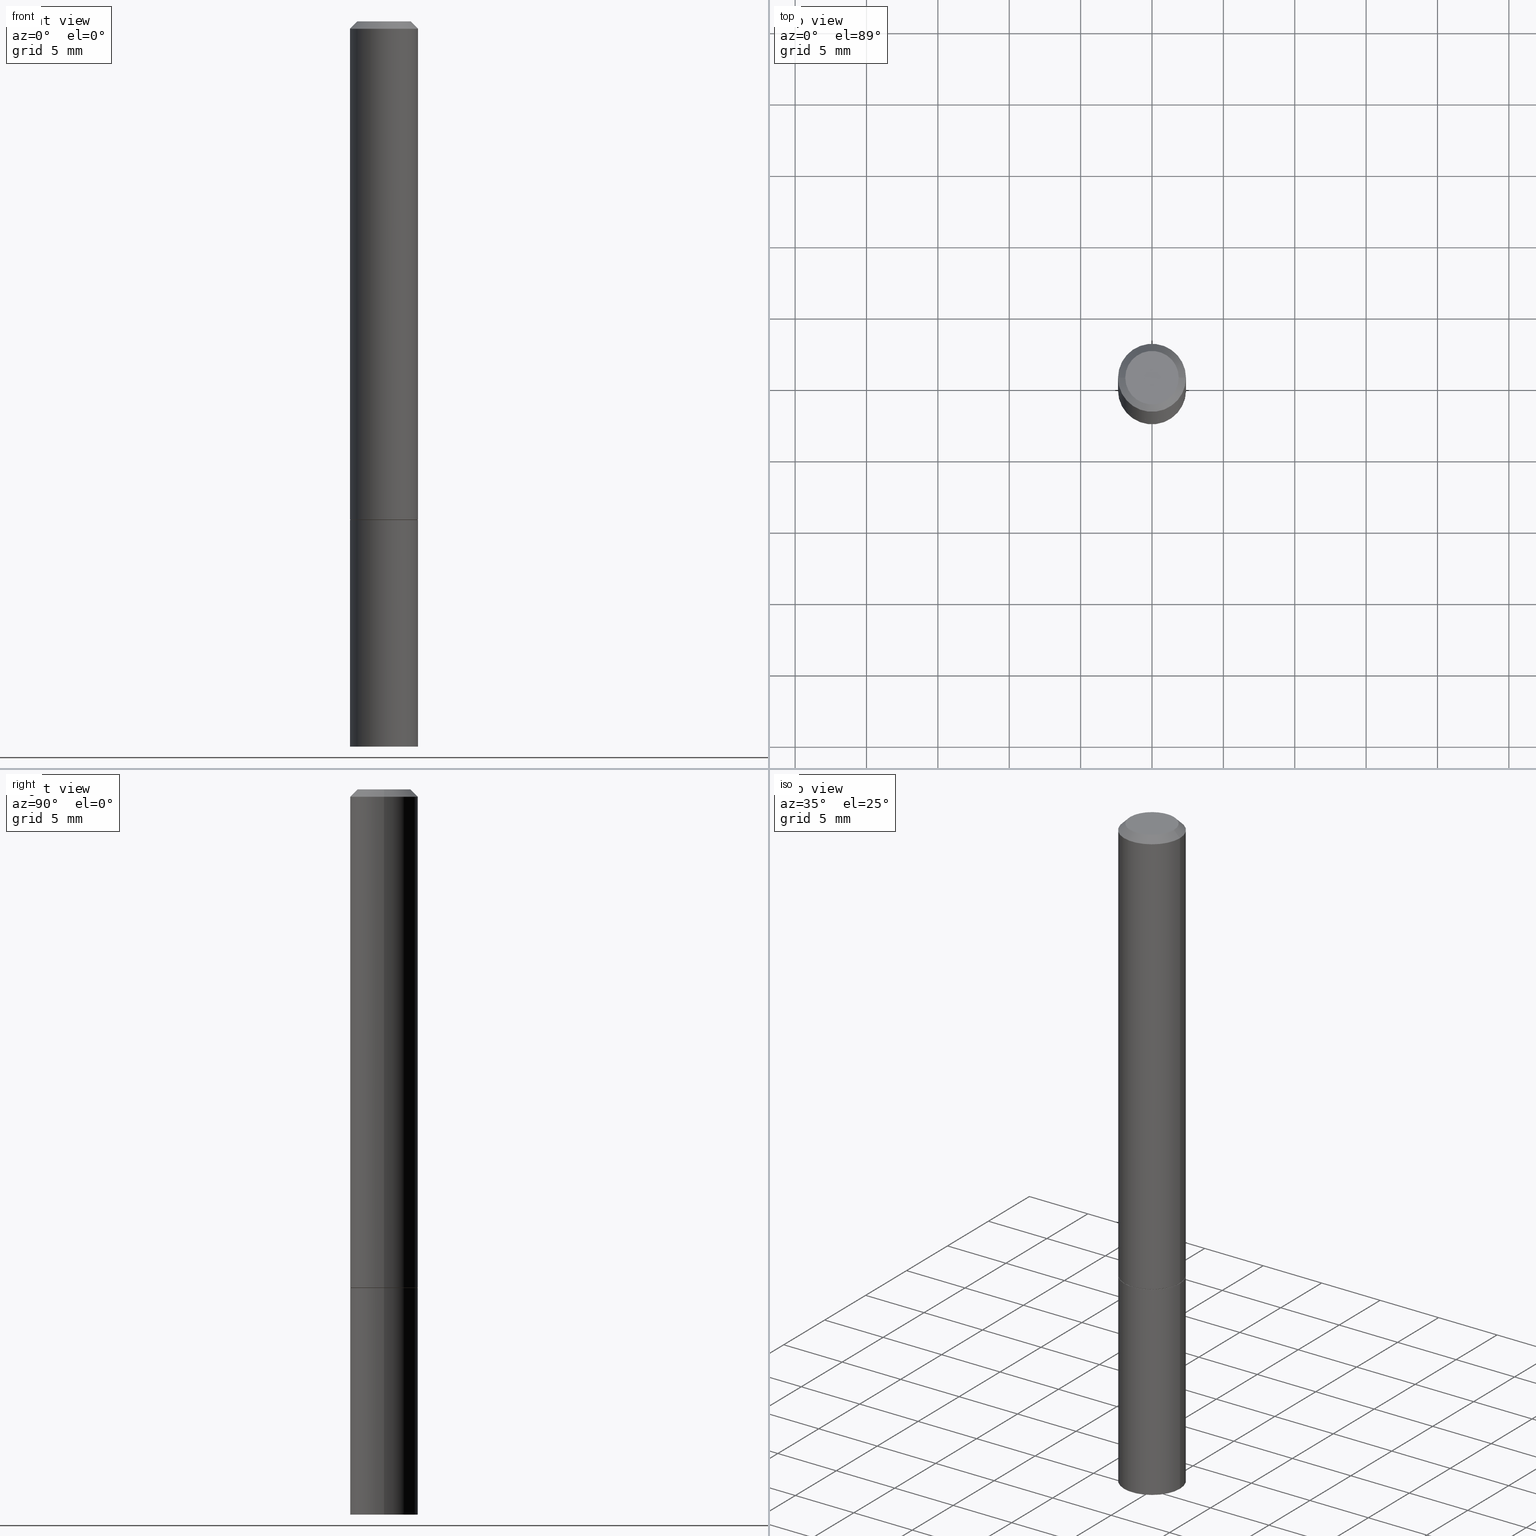
[diagram: canonical four-view strip — front | top / right | iso, engineering-drawing reading convention]
A machine part, canonical four-view strip (front | top / right | iso — engineering-drawing reading convention). The complete STEP part file that produces these views, byte-faithful:
ISO-10303-21;
HEADER;
FILE_DESCRIPTION (( 'STEP AP203' ),
    '1' );
FILE_NAME ('30442.STEP',
    '2024-02-27T12:40:58',
    ( '' ),
    ( '' ),
    'SwSTEP 2.0',
    'SolidWorks 2023',
    '' );
FILE_SCHEMA (( 'CONFIG_CONTROL_DESIGN' ));
ENDSEC;

DATA;
#1 = UNCERTAINTY_MEASURE_WITH_UNIT (LENGTH_MEASURE( 1.000000000000000082E-05 ), #91, 'distance_accuracy_value', 'NONE');
#2 = PRODUCT_DEFINITION_FORMATION_WITH_SPECIFIED_SOURCE ( 'ANY', '', #275, .NOT_KNOWN. ) ;
#3 = ADVANCED_FACE ( 'NONE', ( #36 ), #212, .T. ) ;
#4 = EDGE_LOOP ( 'NONE', ( #96, #232, #155, #316 ) ) ;
#5 = ORIENTED_EDGE ( 'NONE', *, *, #179, .F. ) ;
#6 = ORIENTED_EDGE ( 'NONE', *, *, #307, .T. ) ;
#7 =( NAMED_UNIT ( * ) PLANE_ANGLE_UNIT ( ) SI_UNIT ( $, .RADIAN. ) );
#8 = AXIS2_PLACEMENT_3D ( 'NONE', #222, #247, #191 ) ;
#9 = ORIENTED_EDGE ( 'NONE', *, *, #149, .F. ) ;
#10 = AXIS2_PLACEMENT_3D ( 'NONE', #366, #115, #229 ) ;
#11 = PERSON_AND_ORGANIZATION_ROLE ( 'design_supplier' ) ;
#12 = ORIENTED_EDGE ( 'NONE', *, *, #170, .F. ) ;
#13 = DIRECTION ( 'NONE',  ( 1.000000000000000000, 0.000000000000000000, 0.000000000000000000 ) ) ;
#14 = PLANE ( 'NONE',  #314 ) ;
#15 = DIRECTION ( 'NONE',  ( -2.445468806185136597E-29, 3.491481338843145583E-15, 1.000000000000000000 ) ) ;
#16 = EDGE_CURVE ( 'NONE', #261, #292, #258, .T. ) ;
#17 = CARTESIAN_POINT ( 'NONE',  ( 0.09274999999999999911, -5.448456629264727208E-15, -1.375000000000000000 ) ) ;
#18 = LINE ( 'NONE', #19, #332 ) ;
#19 = CARTESIAN_POINT ( 'NONE',  ( -0.09375000000000001388, 6.661338147750940229E-16, -4.611501647113973995E-30 ) ) ;
#20 = VECTOR ( 'NONE', #230, 39.37007874015748143 ) ;
#21 = APPROVAL_STATUS ( 'not_yet_approved' ) ;
#22 = FACE_OUTER_BOUND ( 'NONE', #187, .T. ) ;
#23 = CARTESIAN_POINT ( 'NONE',  ( 0.09375000000000001388, -7.637615428719378669E-15, -2.000000000000000000 ) ) ;
#24 = PERSON_AND_ORGANIZATION ( #111, #60 ) ;
#25 = DIRECTION ( 'NONE',  ( -2.445468806185136597E-29, 3.491481338843145583E-15, 1.000000000000000000 ) ) ;
#26 = ADVANCED_FACE ( 'NONE', ( #42 ), #175, .T. ) ;
#27 = CONICAL_SURFACE ( 'NONE', #228, 0.09274999999999999911, 0.7853981633974141952 ) ;
#28 = LOCAL_TIME ( 7, 40, 58.00000000000000000, #237 ) ;
#29 = DIRECTION ( 'NONE',  ( 1.000000000000000000, -6.982962677686265922E-15, 4.876176775795935793E-29 ) ) ;
#30 = LINE ( 'NONE', #195, #20 ) ;
#31 = MANIFOLD_SOLID_BREP ( 'Body-Move/Copy2[1]', #215 ) ;
#32 = CALENDAR_DATE ( 2024, 27, 2 ) ;
#33 = ORIENTED_EDGE ( 'NONE', *, *, #287, .F. ) ;
#34 = AXIS2_PLACEMENT_3D ( 'NONE', #277, #272, #194 ) ;
#35 = ORIENTED_EDGE ( 'NONE', *, *, #104, .F. ) ;
#36 = FACE_OUTER_BOUND ( 'NONE', #62, .T. ) ;
#37 = EDGE_CURVE ( 'NONE', #68, #130, #305, .T. ) ;
#38 = EDGE_LOOP ( 'NONE', ( #120, #178 ) ) ;
#39 = CLOSED_SHELL ( 'NONE', ( #156, #3, #330, #26, #350, #319, #63, #185 ) ) ;
#40 = SECURITY_CLASSIFICATION ( '', '', #329 ) ;
#41 = ORIENTED_EDGE ( 'NONE', *, *, #246, .T. ) ;
#42 = FACE_OUTER_BOUND ( 'NONE', #101, .T. ) ;
#43 = CALENDAR_DATE ( 2024, 27, 2 ) ;
#44 = EDGE_CURVE ( 'NONE', #206, #292, #18, .T. ) ;
#45 = CARTESIAN_POINT ( 'NONE',  ( -0.07374999999999982958, 5.499083108677921624E-16, 4.268512490096688071E-18 ) ) ;
#46 = APPROVAL ( #93, 'UNSPECIFIED' ) ;
#47 = DIRECTION ( 'NONE',  ( 1.000000000000000000, -6.982962677686261189E-15, 0.000000000000000000 ) ) ;
#48 = AXIS2_PLACEMENT_3D ( 'NONE', #75, #190, #239 ) ;
#49 = PERSON_AND_ORGANIZATION ( #111, #60 ) ;
#50 = DIRECTION ( 'NONE',  ( 0.000000000000000000, 0.000000000000000000, 1.000000000000000000 ) ) ;
#51 = DIRECTION ( 'NONE',  ( -2.445468806185136597E-29, 3.491481338843145583E-15, 1.000000000000000000 ) ) ;
#52 = EDGE_CURVE ( 'NONE', #153, #94, #181, .T. ) ;
#53 = CARTESIAN_POINT ( 'NONE',  ( -1.043851414335219820E-46, 1.490343170380447200E-32, 4.268512490100411279E-18 ) ) ;
#54 = PRODUCT_DEFINITION_SHAPE ( 'NONE', 'NONE',  #123 ) ;
#55 = AXIS2_PLACEMENT_3D ( 'NONE', #88, #84, #226 ) ;
#56 = FACE_OUTER_BOUND ( 'NONE', #234, .T. ) ;
#57 = CARTESIAN_POINT ( 'NONE',  ( 4.890937612370282792E-31, -6.982962677686303935E-17, -0.02000000000000003858 ) ) ;
#58 = CARTESIAN_POINT ( 'NONE',  ( 3.362519608504562260E-29, -4.800786840909324930E-15, -1.375000000000000000 ) ) ;
#59 = CIRCLE ( 'NONE', #118, 0.09374999999999981959 ) ;
#60 = ORGANIZATION ( 'UNSPECIFIED', 'UNSPECIFIED', '' ) ;
#61 = DIRECTION ( 'NONE',  ( -2.445468806185136877E-29, 3.491481338843145188E-15, 1.000000000000000000 ) ) ;
#62 = EDGE_LOOP ( 'NONE', ( #236, #320, #151, #204 ) ) ;
#63 = ADVANCED_FACE ( 'NONE', ( #354 ), #356, .F. ) ;
#64 = ORIENTED_EDGE ( 'NONE', *, *, #207, .F. ) ;
#65 = EDGE_LOOP ( 'NONE', ( #259, #159 ) ) ;
#66 = DATE_AND_TIME ( #95, #192 ) ;
#67 = AXIS2_PLACEMENT_3D ( 'NONE', #362, #223, #114 ) ;
#68 = VERTEX_POINT ( 'NONE', #331 ) ;
#69 = PERSON_AND_ORGANIZATION ( #111, #60 ) ;
#70 = ORIENTED_EDGE ( 'NONE', *, *, #166, .T. ) ;
#71 = ORIENTED_EDGE ( 'NONE', *, *, #304, .F. ) ;
#72 = AXIS2_PLACEMENT_3D ( 'NONE', #193, #189, #327 ) ;
#73 = DIRECTION ( 'NONE',  ( -2.445468806185136597E-29, 3.491481338843145583E-15, 1.000000000000000000 ) ) ;
#74 = EDGE_CURVE ( 'NONE', #68, #147, #337, .T. ) ;
#75 = CARTESIAN_POINT ( 'NONE',  ( 6.546527510331211293E-16, 0.09374999999999521216, -1.375000000000000222 ) ) ;
#76 = DIRECTION ( 'NONE',  ( -1.000000000000000000, 6.982962677686265922E-15, -4.876176775795935793E-29 ) ) ;
#77 = DIRECTION ( 'NONE',  ( 1.000000000000000000, -6.982962677686266711E-15, 4.875869617646596737E-29 ) ) ;
#78 = EDGE_CURVE ( 'NONE', #147, #68, #286, .T. ) ;
#79 = AXIS2_PLACEMENT_3D ( 'NONE', #184, #73, #107 ) ;
#80 = AXIS2_PLACEMENT_3D ( 'NONE', #53, #301, #77 ) ;
#81 = DIRECTION ( 'NONE',  ( 1.000000000000000000, -6.982962677686266711E-15, 4.875869617646596737E-29 ) ) ;
#82 = CC_DESIGN_PERSON_AND_ORGANIZATION_ASSIGNMENT ( #24, #279, ( #275 ) ) ;
#83 = CARTESIAN_POINT ( 'NONE',  ( 4.890937612370273194E-29, -6.982962677686291165E-15, -2.000000000000000000 ) ) ;
#84 = DIRECTION ( 'NONE',  ( -2.445468806185136597E-29, 3.491481338843145583E-15, 1.000000000000000000 ) ) ;
#85 = VECTOR ( 'NONE', #177, 39.37007874015748854 ) ;
#86 = CARTESIAN_POINT ( 'NONE',  ( -0.09374999999999981959, 5.848231242562232198E-16, -0.02000000000000003858 ) ) ;
#87 = COORDINATED_UNIVERSAL_TIME_OFFSET ( 5, 0, .BEHIND. ) ;
#88 = CARTESIAN_POINT ( 'NONE',  ( 0.000000000000000000, 0.000000000000000000, 0.000000000000000000 ) ) ;
#89 = DIRECTION ( 'NONE',  ( 1.000000000000000000, -6.982962677686261189E-15, 0.000000000000000000 ) ) ;
#90 = AXIS2_PLACEMENT_3D ( 'NONE', #359, #112, #141 ) ;
#91 =( CONVERSION_BASED_UNIT ( 'INCH', #338 ) LENGTH_UNIT ( ) NAMED_UNIT ( #318 ) );
#92 = DIRECTION ( 'NONE',  ( -2.445468806185136597E-29, 3.491481338843145583E-15, 1.000000000000000000 ) ) ;
#93 = APPROVAL_STATUS ( 'not_yet_approved' ) ;
#94 = VERTEX_POINT ( 'NONE', #165 ) ;
#95 = CALENDAR_DATE ( 2024, 27, 2 ) ;
#96 = ORIENTED_EDGE ( 'NONE', *, *, #240, .T. ) ;
#97 = ADVANCED_FACE ( 'NONE', ( #358 ), #300, .F. ) ;
#98 = VECTOR ( 'NONE', #288, 39.37007874015748854 ) ;
#99 = ORIENTED_EDGE ( 'NONE', *, *, #78, .F. ) ;
#100 = CC_DESIGN_PERSON_AND_ORGANIZATION_ASSIGNMENT ( #361, #311, ( #123 ) ) ;
#101 = EDGE_LOOP ( 'NONE', ( #9, #127, #266, #296 ) ) ;
#102 = PERSON_AND_ORGANIZATION ( #111, #60 ) ;
#103 = CARTESIAN_POINT ( 'NONE',  ( -0.09375000000000001388, -1.767428678398576122E-15, -1.373999999999999888 ) ) ;
#104 = EDGE_CURVE ( 'NONE', #292, #261, #264, .T. ) ;
#105 = CIRCLE ( 'NONE', #129, 0.09274999999999999911 ) ;
#106 = APPLICATION_PROTOCOL_DEFINITION ( 'international standard', 'config_control_design', 1994, #364 ) ;
#107 = DIRECTION ( 'NONE',  ( 1.000000000000000000, -6.982962677686261189E-15, 0.000000000000000000 ) ) ;
#108 = DIRECTION ( 'NONE',  ( 1.000000000000000000, -6.982962677686267499E-15, 0.000000000000000000 ) ) ;
#109 = PERSON_AND_ORGANIZATION_ROLE ( 'classification_officer' ) ;
#110 = DIRECTION ( 'NONE',  ( 0.7071067811865466846, -7.319954787623252890E-15, -0.7071067811865483499 ) ) ;
#111 = PERSON ( 'UNSPECIFIED', 'UNSPECIFIED', 'UNSPECIFIED', ('UNSPECIFIED'), ('UNSPECIFIED'), ('UNSPECIFIED') ) ;
#112 = DIRECTION ( 'NONE',  ( -2.445468806185136597E-29, 3.491481338843145583E-15, 1.000000000000000000 ) ) ;
#113 = COORDINATED_UNIVERSAL_TIME_OFFSET ( 5, 0, .BEHIND. ) ;
#114 = DIRECTION ( 'NONE',  ( -1.000000000000000000, 6.982962677686265922E-15, -4.876176775795935793E-29 ) ) ;
#115 = DIRECTION ( 'NONE',  ( -2.445468806185136597E-29, 3.491481338843145583E-15, 1.000000000000000000 ) ) ;
#116 = DATE_AND_TIME ( #248, #231 ) ;
#117 = DIRECTION ( 'NONE',  ( 1.000000000000000000, -6.982962677686267499E-15, 0.000000000000000000 ) ) ;
#118 = AXIS2_PLACEMENT_3D ( 'NONE', #214, #51, #108 ) ;
#119 = FACE_OUTER_BOUND ( 'NONE', #38, .T. ) ;
#120 = ORIENTED_EDGE ( 'NONE', *, *, #240, .F. ) ;
#121 = DIRECTION ( 'NONE',  ( 2.445468806185136597E-29, -3.491481338843145583E-15, -1.000000000000000000 ) ) ;
#122 = DESIGN_CONTEXT ( 'detailed design', #298, 'design' ) ;
#123 = PRODUCT_DEFINITION ( 'UNKNOWN', '', #2, #122 ) ;
#124 = AXIS2_PLACEMENT_3D ( 'NONE', #58, #335, #143 ) ;
#125 = COORDINATED_UNIVERSAL_TIME_OFFSET ( 5, 0, .BEHIND. ) ;
#126 = VERTEX_POINT ( 'NONE', #17 ) ;
#127 = ORIENTED_EDGE ( 'NONE', *, *, #52, .F. ) ;
#128 = ORIENTED_EDGE ( 'NONE', *, *, #78, .T. ) ;
#129 = AXIS2_PLACEMENT_3D ( 'NONE', #168, #274, #325 ) ;
#130 = VERTEX_POINT ( 'NONE', #245 ) ;
#131 = PERSON_AND_ORGANIZATION ( #111, #60 ) ;
#132 = EDGE_LOOP ( 'NONE', ( #64, #12 ) ) ;
#133 = DATE_AND_TIME ( #43, #297 ) ;
#134 = CARTESIAN_POINT ( 'NONE',  ( 5.149934974793609077E-16, 0.07374999999999982958, -2.553624924946311773E-16 ) ) ;
#135 = APPROVAL_PERSON_ORGANIZATION ( #69, #46, #315 ) ;
#136 = LINE ( 'NONE', #303, #278 ) ;
#137 = DATE_AND_TIME ( #324, #28 ) ;
#138 = DIRECTION ( 'NONE',  ( -2.445468806185136597E-29, 3.491481338843145583E-15, 1.000000000000000000 ) ) ;
#139 = CARTESIAN_POINT ( 'NONE',  ( -0.09374999999999981959, 5.848231242562232198E-16, -0.02000000000000003858 ) ) ;
#140 = APPLICATION_PROTOCOL_DEFINITION ( 'international standard', 'config_control_design', 1994, #298 ) ;
#141 = DIRECTION ( 'NONE',  ( 1.000000000000000000, -6.982962677686261189E-15, 0.000000000000000000 ) ) ;
#142 = AXIS2_PLACEMENT_3D ( 'NONE', #283, #25, #252 ) ;
#143 = DIRECTION ( 'NONE',  ( 1.000000000000000000, -6.982962677686273021E-15, 0.000000000000000000 ) ) ;
#144 = EDGE_CURVE ( 'NONE', #94, #153, #198, .T. ) ;
#145 = CARTESIAN_POINT ( 'NONE',  ( -0.09375000000000001388, -5.225740944522714123E-15, -1.375000000000000000 ) ) ;
#146 = CARTESIAN_POINT ( 'NONE',  ( -0.09375000000000001388, -5.225740944522714123E-15, -2.000000000000000000 ) ) ;
#147 = VERTEX_POINT ( 'NONE', #103 ) ;
#148 = AXIS2_PLACEMENT_3D ( 'NONE', #83, #250, #340 ) ;
#149 = EDGE_CURVE ( 'NONE', #94, #130, #136, .T. ) ;
#150 = CARTESIAN_POINT ( 'NONE',  ( 0.09274999999999999911, -5.448456629264727208E-15, -1.375000000000000000 ) ) ;
#151 = ORIENTED_EDGE ( 'NONE', *, *, #166, .F. ) ;
#152 = LOCAL_TIME ( 7, 40, 58.00000000000000000, #113 ) ;
#153 = VERTEX_POINT ( 'NONE', #45 ) ;
#154 = ORIENTED_EDGE ( 'NONE', *, *, #104, .T. ) ;
#155 = ORIENTED_EDGE ( 'NONE', *, *, #16, .F. ) ;
#156 = ADVANCED_FACE ( 'NONE', ( #162 ), #27, .T. ) ;
#157 = CIRCLE ( 'NONE', #326, 0.09374999999999981959 ) ;
#158 = PERSON_AND_ORGANIZATION ( #111, #60 ) ;
#159 = ORIENTED_EDGE ( 'NONE', *, *, #144, .T. ) ;
#160 = DIRECTION ( 'NONE',  ( -0.7071067811865466846, 2.468850131082247989E-15, -0.7071067811865483499 ) ) ;
#161 = APPROVAL_ROLE ( '' ) ;
#162 = FACE_OUTER_BOUND ( 'NONE', #213, .T. ) ;
#163 = SHAPE_DEFINITION_REPRESENTATION ( #54, #255 ) ;
#164 = MECHANICAL_CONTEXT ( 'NONE', #364, 'mechanical' ) ;
#165 = CARTESIAN_POINT ( 'NONE',  ( 0.07374999999999982958, -6.094815207017961198E-16, 4.268512490104342487E-18 ) ) ;
#166 = EDGE_CURVE ( 'NONE', #130, #317, #59, .T. ) ;
#167 = PERSON_AND_ORGANIZATION_ROLE ( 'creator' ) ;
#168 = CARTESIAN_POINT ( 'NONE',  ( 3.362519608504562260E-29, -4.800786840909324930E-15, -1.375000000000000000 ) ) ;
#169 = CARTESIAN_POINT ( 'NONE',  ( 3.362519608504562260E-29, -4.800786840909324930E-15, -1.375000000000000000 ) ) ;
#170 = EDGE_CURVE ( 'NONE', #294, #126, #105, .T. ) ;
#171 = DIRECTION ( 'NONE',  ( -2.445468806185136597E-29, 3.491481338843145583E-15, 1.000000000000000000 ) ) ;
#172 = CARTESIAN_POINT ( 'NONE',  ( 4.890937612370282792E-31, -6.982962677686303935E-17, -0.02000000000000003858 ) ) ;
#173 = CARTESIAN_POINT ( 'NONE',  ( 4.890937612370273194E-29, -6.982962677686291165E-15, -2.000000000000000000 ) ) ;
#174 = CARTESIAN_POINT ( 'NONE',  ( 0.09375000000000001388, -5.455439591942412434E-15, -1.375000000000000000 ) ) ;
#175 = CONICAL_SURFACE ( 'NONE', #8, 0.09374999999999981959, 0.7853981633974471688 ) ;
#176 = AXIS2_PLACEMENT_3D ( 'NONE', #336, #171, #29 ) ;
#177 = DIRECTION ( 'NONE',  ( 0.7071067811865232589, -2.468850131082003836E-15, 0.7071067811865715536 ) ) ;
#178 = ORIENTED_EDGE ( 'NONE', *, *, #211, .F. ) ;
#179 = EDGE_CURVE ( 'NONE', #153, #317, #218, .T. ) ;
#180 = ORIENTED_EDGE ( 'NONE', *, *, #37, .T. ) ;
#181 = CIRCLE ( 'NONE', #227, 0.07374999999999982958 ) ;
#182 = AXIS2_PLACEMENT_3D ( 'NONE', #219, #138, #47 ) ;
#183 = EDGE_LOOP ( 'NONE', ( #343, #347, #70, #5 ) ) ;
#184 = CARTESIAN_POINT ( 'NONE',  ( 3.362519608504562260E-29, -4.800786840909324930E-15, -1.375000000000000000 ) ) ;
#185 = ADVANCED_FACE ( 'NONE', ( #268 ), #14, .F. ) ;
#186 = APPROVAL_STATUS ( 'not_yet_approved' ) ;
#187 = EDGE_LOOP ( 'NONE', ( #71, #128, #180, #33 ) ) ;
#188 = APPROVAL_PERSON_ORGANIZATION ( #131, #276, #161 ) ;
#189 = DIRECTION ( 'NONE',  ( -2.438088387897960049E-29, 3.491481338843145188E-15, 1.000000000000000000 ) ) ;
#190 = DIRECTION ( 'NONE',  ( 2.438088387897960049E-29, -3.491481338843145188E-15, -1.000000000000000000 ) ) ;
#191 = DIRECTION ( 'NONE',  ( -1.000000000000000000, 6.982962677686267499E-15, 0.000000000000000000 ) ) ;
#192 = LOCAL_TIME ( 7, 40, 58.00000000000000000, #125 ) ;
#193 = CARTESIAN_POINT ( 'NONE',  ( 3.362519608504562260E-29, -4.800786840909324930E-15, -1.375000000000000000 ) ) ;
#194 = DIRECTION ( 'NONE',  ( 1.000000000000000000, -6.982962677686261189E-15, 0.000000000000000000 ) ) ;
#195 = CARTESIAN_POINT ( 'NONE',  ( 0.09375000000000001388, -6.546527510330875041E-16, 4.571415727308690506E-30 ) ) ;
#196 = PERSON_AND_ORGANIZATION ( #111, #60 ) ;
#197 = FACE_OUTER_BOUND ( 'NONE', #4, .T. ) ;
#198 = CIRCLE ( 'NONE', #80, 0.07374999999999982958 ) ;
#199 = CC_DESIGN_SECURITY_CLASSIFICATION ( #40, ( #2 ) ) ;
#200 = LINE ( 'NONE', #309, #241 ) ;
#201 = FACE_OUTER_BOUND ( 'NONE', #183, .T. ) ;
#202 = EDGE_LOOP ( 'NONE', ( #262, #154 ) ) ;
#203 = CYLINDRICAL_SURFACE ( 'NONE', #176, 0.09375000000000001388 ) ;
#204 = ORIENTED_EDGE ( 'NONE', *, *, #37, .F. ) ;
#205 = APPROVAL_PERSON_ORGANIZATION ( #196, #321, #251 ) ;
#206 = VERTEX_POINT ( 'NONE', #146 ) ;
#207 = EDGE_CURVE ( 'NONE', #126, #294, #260, .T. ) ;
#208 = ORIENTED_EDGE ( 'NONE', *, *, #170, .T. ) ;
#209 = ORIENTED_EDGE ( 'NONE', *, *, #246, .F. ) ;
#210 = DATE_TIME_ROLE ( 'creation_date' ) ;
#211 = EDGE_CURVE ( 'NONE', #206, #339, #360, .T. ) ;
#212 = CYLINDRICAL_SURFACE ( 'NONE', #285, 0.09374999999999991673 ) ;
#213 = EDGE_LOOP ( 'NONE', ( #235, #41, #263, #323 ) ) ;
#214 = CARTESIAN_POINT ( 'NONE',  ( 4.890937612370282792E-31, -6.982962677686303935E-17, -0.02000000000000003858 ) ) ;
#215 = CLOSED_SHELL ( 'NONE', ( #299, #365, #97, #267 ) ) ;
#216 = AXIS2_PLACEMENT_3D ( 'NONE', #172, #121, #282 ) ;
#217 = DIRECTION ( 'NONE',  ( -2.445468806185136877E-29, 3.491481338843145188E-15, 1.000000000000000000 ) ) ;
#218 = LINE ( 'NONE', #139, #333 ) ;
#219 = CARTESIAN_POINT ( 'NONE',  ( 3.360074139698377778E-29, -4.797295359570481134E-15, -1.373999999999999888 ) ) ;
#220 = CC_DESIGN_APPROVAL ( #46, ( #2 ) ) ;
#221 = CARTESIAN_POINT ( 'NONE',  ( 0.000000000000000000, 0.000000000000000000, 0.000000000000000000 ) ) ;
#222 = CARTESIAN_POINT ( 'NONE',  ( 4.890937612370282792E-31, -6.982962677686303935E-17, -0.02000000000000003858 ) ) ;
#223 = DIRECTION ( 'NONE',  ( 2.438088387897960049E-29, -3.491481338843145188E-15, -1.000000000000000000 ) ) ;
#224 = CARTESIAN_POINT ( 'NONE',  ( -0.09274999999999999911, -4.141758453491832014E-15, -1.375000000000000000 ) ) ;
#225 = APPROVAL_DATE_TIME ( #116, #321 ) ;
#226 = DIRECTION ( 'NONE',  ( 1.000000000000000000, -6.982962677686265922E-15, 4.876176775795935793E-29 ) ) ;
#227 = AXIS2_PLACEMENT_3D ( 'NONE', #243, #15, #81 ) ;
#228 = AXIS2_PLACEMENT_3D ( 'NONE', #169, #302, #269 ) ;
#229 = DIRECTION ( 'NONE',  ( 1.000000000000000000, -6.982962677686273021E-15, 0.000000000000000000 ) ) ;
#230 = DIRECTION ( 'NONE',  ( -2.445468806185136877E-29, 3.491481338843145188E-15, 1.000000000000000000 ) ) ;
#231 = LOCAL_TIME ( 7, 40, 58.00000000000000000, #87 ) ;
#232 = ORIENTED_EDGE ( 'NONE', *, *, #44, .T. ) ;
#233 = CC_DESIGN_PERSON_AND_ORGANIZATION_ASSIGNMENT ( #102, #11, ( #2 ) ) ;
#234 = EDGE_LOOP ( 'NONE', ( #209, #208, #6, #99 ) ) ;
#235 = ORIENTED_EDGE ( 'NONE', *, *, #207, .T. ) ;
#236 = ORIENTED_EDGE ( 'NONE', *, *, #74, .T. ) ;
#237 = COORDINATED_UNIVERSAL_TIME_OFFSET ( 5, 0, .BEHIND. ) ;
#238 = CARTESIAN_POINT ( 'NONE',  ( 0.000000000000000000, 0.000000000000000000, 0.000000000000000000 ) ) ;
#239 = DIRECTION ( 'NONE',  ( -1.000000000000000000, 6.982962677686265922E-15, -4.876176775795935793E-29 ) ) ;
#240 = EDGE_CURVE ( 'NONE', #339, #206, #254, .T. ) ;
#241 = VECTOR ( 'NONE', #61, 39.37007874015748143 ) ;
#242 =( NAMED_UNIT ( * ) SI_UNIT ( $, .STERADIAN. ) SOLID_ANGLE_UNIT ( ) );
#243 = CARTESIAN_POINT ( 'NONE',  ( -1.043851414335219820E-46, 1.490343170380447200E-32, 4.268512490100411279E-18 ) ) ;
#244 = CC_DESIGN_PERSON_AND_ORGANIZATION_ASSIGNMENT ( #49, #109, ( #40 ) ) ;
#245 = CARTESIAN_POINT ( 'NONE',  ( 0.09374999999999981959, -7.130013140679429031E-16, -0.02000000000000003858 ) ) ;
#246 = EDGE_CURVE ( 'NONE', #294, #147, #257, .T. ) ;
#247 = DIRECTION ( 'NONE',  ( 2.445468806185136597E-29, -3.491481338843145583E-15, -1.000000000000000000 ) ) ;
#248 = CALENDAR_DATE ( 2024, 27, 2 ) ;
#249 = CYLINDRICAL_SURFACE ( 'NONE', #142, 0.09374999999999991673 ) ;
#250 = DIRECTION ( 'NONE',  ( -2.445468806185136597E-29, 3.491481338843145583E-15, 1.000000000000000000 ) ) ;
#251 = APPROVAL_ROLE ( '' ) ;
#252 = DIRECTION ( 'NONE',  ( 1.000000000000000000, -6.982962677686266711E-15, 4.876176775795935793E-29 ) ) ;
#253 = LINE ( 'NONE', #150, #85 ) ;
#254 = CIRCLE ( 'NONE', #148, 0.09375000000000001388 ) ;
#255 = ADVANCED_BREP_SHAPE_REPRESENTATION ( '30442', ( #31, #281, #355 ), #270 ) ;
#256 = CC_DESIGN_PERSON_AND_ORGANIZATION_ASSIGNMENT ( #158, #167, ( #2 ) ) ;
#257 = LINE ( 'NONE', #224, #98 ) ;
#258 = CIRCLE ( 'NONE', #79, 0.09375000000000001388 ) ;
#259 = ORIENTED_EDGE ( 'NONE', *, *, #52, .T. ) ;
#260 = CIRCLE ( 'NONE', #124, 0.09274999999999999911 ) ;
#261 = VERTEX_POINT ( 'NONE', #174 ) ;
#262 = ORIENTED_EDGE ( 'NONE', *, *, #16, .T. ) ;
#263 = ORIENTED_EDGE ( 'NONE', *, *, #74, .F. ) ;
#264 = CIRCLE ( 'NONE', #34, 0.09375000000000001388 ) ;
#265 = CC_DESIGN_APPROVAL ( #276, ( #40 ) ) ;
#266 = ORIENTED_EDGE ( 'NONE', *, *, #179, .T. ) ;
#267 = ADVANCED_FACE ( 'NONE', ( #284 ), #203, .T. ) ;
#268 = FACE_OUTER_BOUND ( 'NONE', #65, .T. ) ;
#269 = DIRECTION ( 'NONE',  ( 1.000000000000000000, -6.982962677686273021E-15, 0.000000000000000000 ) ) ;
#270 =( GEOMETRIC_REPRESENTATION_CONTEXT ( 3 ) GLOBAL_UNCERTAINTY_ASSIGNED_CONTEXT ( ( #1 ) ) GLOBAL_UNIT_ASSIGNED_CONTEXT ( ( #91, #7, #242 ) ) REPRESENTATION_CONTEXT ( 'NONE', 'WORKASPACE' ) );
#271 = APPROVAL_DATE_TIME ( #137, #276 ) ;
#272 = DIRECTION ( 'NONE',  ( -2.445468806185136597E-29, 3.491481338843145583E-15, 1.000000000000000000 ) ) ;
#273 = COORDINATED_UNIVERSAL_TIME_OFFSET ( 5, 0, .BEHIND. ) ;
#274 = DIRECTION ( 'NONE',  ( -2.445468806185136597E-29, 3.491481338843145583E-15, 1.000000000000000000 ) ) ;
#275 = PRODUCT ( '30442', '30442', '', ( #164 ) ) ;
#276 = APPROVAL ( #186, 'UNSPECIFIED' ) ;
#277 = CARTESIAN_POINT ( 'NONE',  ( 3.362519608504562260E-29, -4.800786840909324930E-15, -1.375000000000000000 ) ) ;
#278 = VECTOR ( 'NONE', #110, 39.37007874015748143 ) ;
#279 = PERSON_AND_ORGANIZATION_ROLE ( 'design_owner' ) ;
#280 =( LENGTH_UNIT ( ) NAMED_UNIT ( * ) SI_UNIT ( $, .METRE. ) );
#281 = MANIFOLD_SOLID_BREP ( 'Body-Move/Copy2[2]', #39 ) ;
#282 = DIRECTION ( 'NONE',  ( -1.000000000000000000, 6.982962677686267499E-15, 0.000000000000000000 ) ) ;
#283 = CARTESIAN_POINT ( 'NONE',  ( 0.000000000000000000, 0.000000000000000000, 0.000000000000000000 ) ) ;
#284 = FACE_OUTER_BOUND ( 'NONE', #295, .T. ) ;
#285 = AXIS2_PLACEMENT_3D ( 'NONE', #238, #92, #322 ) ;
#286 = CIRCLE ( 'NONE', #182, 0.09375000000000001388 ) ;
#287 = EDGE_CURVE ( 'NONE', #317, #130, #157, .T. ) ;
#288 = DIRECTION ( 'NONE',  ( -0.7071067811865232589, 7.493145998870265808E-15, 0.7071067811865715536 ) ) ;
#289 = PRODUCT_RELATED_PRODUCT_CATEGORY ( 'detail', '', ( #275 ) ) ;
#290 = ORIENTED_EDGE ( 'NONE', *, *, #344, .T. ) ;
#291 = VECTOR ( 'NONE', #217, 39.37007874015748143 ) ;
#292 = VERTEX_POINT ( 'NONE', #145 ) ;
#293 = CONICAL_SURFACE ( 'NONE', #10, 0.09274999999999999911, 0.7853981633974141952 ) ;
#294 = VERTEX_POINT ( 'NONE', #313 ) ;
#295 = EDGE_LOOP ( 'NONE', ( #345, #351, #290, #35 ) ) ;
#296 = ORIENTED_EDGE ( 'NONE', *, *, #287, .T. ) ;
#297 = LOCAL_TIME ( 7, 40, 58.00000000000000000, #273 ) ;
#298 = APPLICATION_CONTEXT ( 'configuration controlled 3d designs of mechanical parts and assemblies' ) ;
#299 = ADVANCED_FACE ( 'NONE', ( #197 ), #310, .T. ) ;
#300 = PLANE ( 'NONE',  #48 ) ;
#301 = DIRECTION ( 'NONE',  ( -2.445468806185136597E-29, 3.491481338843145583E-15, 1.000000000000000000 ) ) ;
#302 = DIRECTION ( 'NONE',  ( -2.445468806185136597E-29, 3.491481338843145583E-15, 1.000000000000000000 ) ) ;
#303 = CARTESIAN_POINT ( 'NONE',  ( 0.09374999999999981959, -7.130013140679429031E-16, -0.02000000000000003858 ) ) ;
#304 = EDGE_CURVE ( 'NONE', #147, #317, #200, .T. ) ;
#305 = LINE ( 'NONE', #334, #291 ) ;
#306 = PLANE ( 'NONE',  #67 ) ;
#307 = EDGE_CURVE ( 'NONE', #126, #68, #253, .T. ) ;
#308 = AXIS2_PLACEMENT_3D ( 'NONE', #173, #312, #89 ) ;
#309 = CARTESIAN_POINT ( 'NONE',  ( -0.09374999999999991673, 6.661338147750933326E-16, -4.611501647113969791E-30 ) ) ;
#310 = CYLINDRICAL_SURFACE ( 'NONE', #55, 0.09375000000000001388 ) ;
#311 = PERSON_AND_ORGANIZATION_ROLE ( 'creator' ) ;
#312 = DIRECTION ( 'NONE',  ( -2.445468806185136597E-29, 3.491481338843145583E-15, 1.000000000000000000 ) ) ;
#313 = CARTESIAN_POINT ( 'NONE',  ( -0.09274999999999999911, -4.136459999143610400E-15, -1.375000000000000000 ) ) ;
#314 = AXIS2_PLACEMENT_3D ( 'NONE', #134, #328, #76 ) ;
#315 = APPROVAL_ROLE ( '' ) ;
#316 = ORIENTED_EDGE ( 'NONE', *, *, #344, .F. ) ;
#317 = VERTEX_POINT ( 'NONE', #86 ) ;
#318 = DIMENSIONAL_EXPONENTS ( 1.000000000000000000, 0.000000000000000000, 0.000000000000000000, 0.000000000000000000, 0.000000000000000000, 0.000000000000000000, 0.000000000000000000 ) ;
#319 = ADVANCED_FACE ( 'NONE', ( #56 ), #293, .T. ) ;
#320 = ORIENTED_EDGE ( 'NONE', *, *, #304, .T. ) ;
#321 = APPROVAL ( #21, 'UNSPECIFIED' ) ;
#322 = DIRECTION ( 'NONE',  ( 1.000000000000000000, -6.982962677686266711E-15, 4.876176775795935793E-29 ) ) ;
#323 = ORIENTED_EDGE ( 'NONE', *, *, #307, .F. ) ;
#324 = CALENDAR_DATE ( 2024, 27, 2 ) ;
#325 = DIRECTION ( 'NONE',  ( 1.000000000000000000, -6.982962677686273021E-15, 0.000000000000000000 ) ) ;
#326 = AXIS2_PLACEMENT_3D ( 'NONE', #57, #363, #117 ) ;
#327 = DIRECTION ( 'NONE',  ( 1.000000000000000000, -6.982962677686265922E-15, 4.876176775795935793E-29 ) ) ;
#328 = DIRECTION ( 'NONE',  ( 2.438088387897960049E-29, -3.491481338843145188E-15, -1.000000000000000000 ) ) ;
#329 = SECURITY_CLASSIFICATION_LEVEL ( 'unclassified' ) ;
#330 = ADVANCED_FACE ( 'NONE', ( #201 ), #342, .T. ) ;
#331 = CARTESIAN_POINT ( 'NONE',  ( 0.09375000000000001388, -5.451948110603568638E-15, -1.373999999999999888 ) ) ;
#332 = VECTOR ( 'NONE', #353, 39.37007874015748143 ) ;
#333 = VECTOR ( 'NONE', #160, 39.37007874015748143 ) ;
#334 = CARTESIAN_POINT ( 'NONE',  ( 0.09374999999999991673, -6.546527510330869125E-16, 4.571415727308685602E-30 ) ) ;
#335 = DIRECTION ( 'NONE',  ( -2.445468806185136597E-29, 3.491481338843145583E-15, 1.000000000000000000 ) ) ;
#336 = CARTESIAN_POINT ( 'NONE',  ( 0.000000000000000000, 0.000000000000000000, 0.000000000000000000 ) ) ;
#337 = CIRCLE ( 'NONE', #90, 0.09375000000000001388 ) ;
#338 = LENGTH_MEASURE_WITH_UNIT ( LENGTH_MEASURE( 0.02539999999999999897 ), #280 );
#339 = VERTEX_POINT ( 'NONE', #23 ) ;
#340 = DIRECTION ( 'NONE',  ( 1.000000000000000000, -6.982962677686261189E-15, 0.000000000000000000 ) ) ;
#341 = CC_DESIGN_DATE_AND_TIME_ASSIGNMENT ( #346, #210, ( #123 ) ) ;
#342 = CONICAL_SURFACE ( 'NONE', #216, 0.09374999999999981959, 0.7853981633974471688 ) ;
#343 = ORIENTED_EDGE ( 'NONE', *, *, #144, .F. ) ;
#344 = EDGE_CURVE ( 'NONE', #339, #261, #30, .T. ) ;
#345 = ORIENTED_EDGE ( 'NONE', *, *, #44, .F. ) ;
#346 = DATE_AND_TIME ( #32, #152 ) ;
#347 = ORIENTED_EDGE ( 'NONE', *, *, #149, .T. ) ;
#348 = CC_DESIGN_APPROVAL ( #321, ( #123 ) ) ;
#349 = APPROVAL_DATE_TIME ( #66, #46 ) ;
#350 = ADVANCED_FACE ( 'NONE', ( #22 ), #249, .T. ) ;
#351 = ORIENTED_EDGE ( 'NONE', *, *, #211, .T. ) ;
#352 = CC_DESIGN_DATE_AND_TIME_ASSIGNMENT ( #133, #357, ( #40 ) ) ;
#353 = DIRECTION ( 'NONE',  ( -2.445468806185136877E-29, 3.491481338843145188E-15, 1.000000000000000000 ) ) ;
#354 = FACE_OUTER_BOUND ( 'NONE', #132, .T. ) ;
#355 = AXIS2_PLACEMENT_3D ( 'NONE', #221, #50, #13 ) ;
#356 = PLANE ( 'NONE',  #72 ) ;
#357 = DATE_TIME_ROLE ( 'classification_date' ) ;
#358 = FACE_OUTER_BOUND ( 'NONE', #202, .T. ) ;
#359 = CARTESIAN_POINT ( 'NONE',  ( 3.360074139698377778E-29, -4.797295359570481134E-15, -1.373999999999999888 ) ) ;
#360 = CIRCLE ( 'NONE', #308, 0.09375000000000001388 ) ;
#361 = PERSON_AND_ORGANIZATION ( #111, #60 ) ;
#362 = CARTESIAN_POINT ( 'NONE',  ( 6.546527510331364135E-16, 0.09374999999999301947, -2.000000000000000444 ) ) ;
#363 = DIRECTION ( 'NONE',  ( -2.445468806185136597E-29, 3.491481338843145583E-15, 1.000000000000000000 ) ) ;
#364 = APPLICATION_CONTEXT ( 'configuration controlled 3d designs of mechanical parts and assemblies' ) ;
#365 = ADVANCED_FACE ( 'NONE', ( #119 ), #306, .T. ) ;
#366 = CARTESIAN_POINT ( 'NONE',  ( 3.362519608504562260E-29, -4.800786840909324930E-15, -1.375000000000000000 ) ) ;
ENDSEC;
END-ISO-10303-21;
